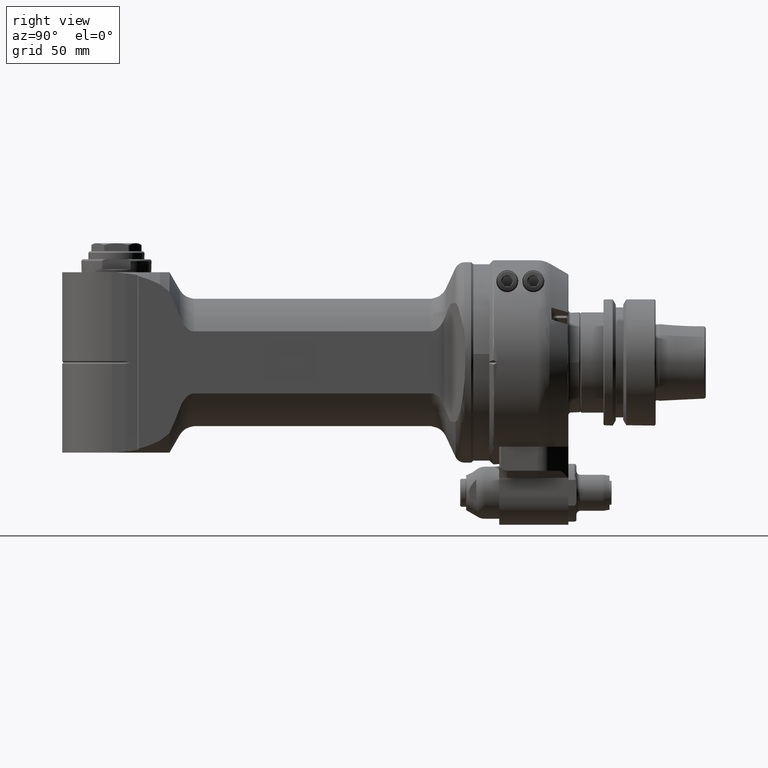
[diagram: clean part render]
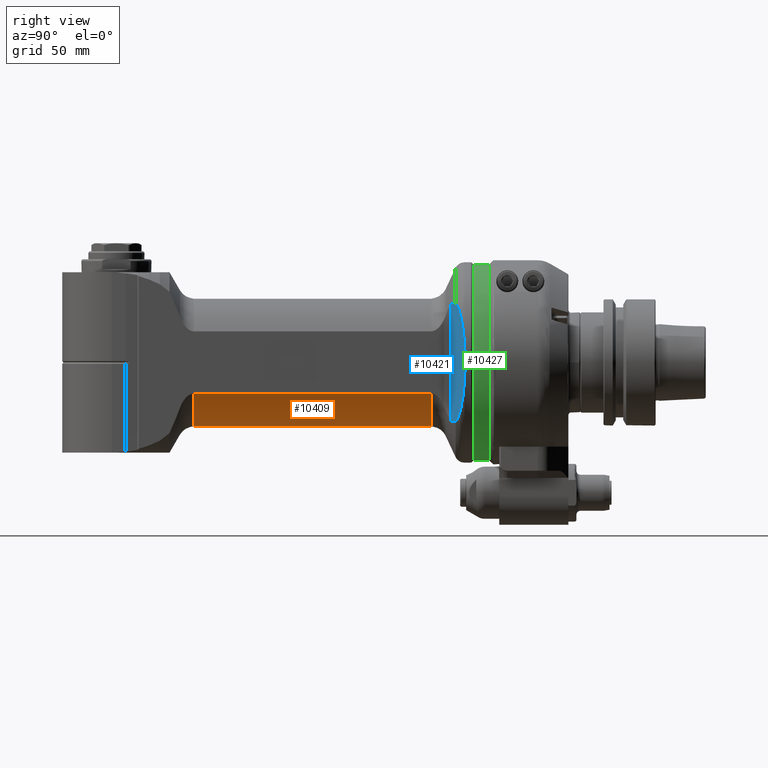
[diagram: same view with three faces highlighted in distinct colors, each labeled with its STEP entity id]
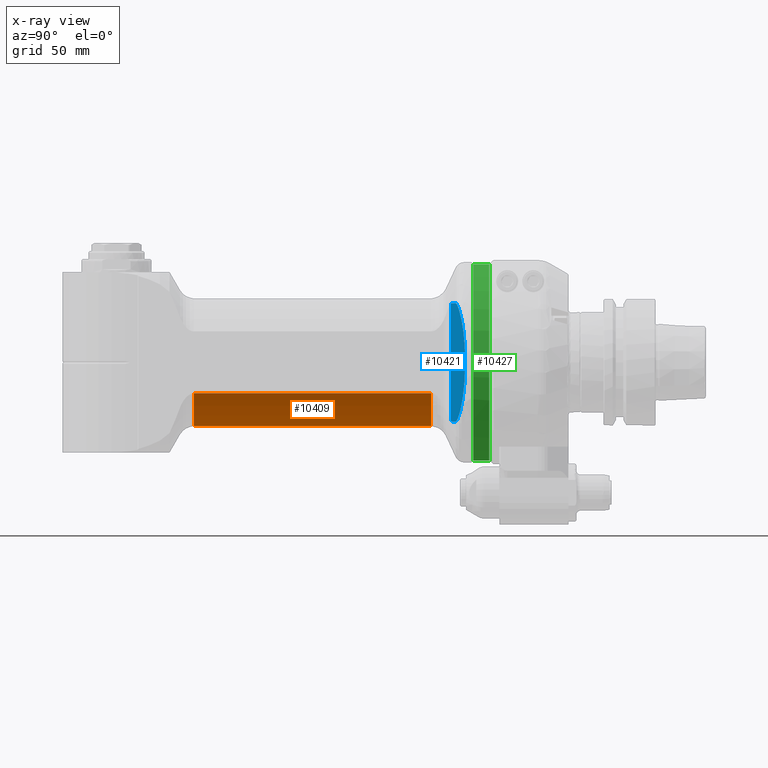
[diagram: x-ray of the same camera — body ghosted, the three highlighted faces saturated]
A machine part, right view with three faces highlighted in distinct colors.
The next image is the same camera in x-ray (body ghosted, the three faces saturated) — at least one of them is partly hidden behind the body in this view.
Their STEP definitions:

[orange] entity #10409 — the highlighted cylindrical surface (partial cylindrical patch) has radius 32 mm, axis along (-0, 1, 0).
#907=LINE('',#20424,#1550);
#925=LINE('',#20769,#1568);
#1550=VECTOR('',#14275,118.3910979735);
#1568=VECTOR('',#14369,118.3910979735);
#1819=CYLINDRICAL_SURFACE('',#11603,32.);
#2656=FACE_OUTER_BOUND('',#3321,.T.);
#3321=EDGE_LOOP('',(#9185,#9186,#9187,#9188));
#4022=CIRCLE('',#11601,32.);
#4024=CIRCLE('',#11604,32.);
#4948=VERTEX_POINT('',#20408);
#4949=VERTEX_POINT('',#20423);
#5005=VERTEX_POINT('',#20755);
#5006=VERTEX_POINT('',#20768);
#6364=EDGE_CURVE('',#4949,#4948,#907,.T.);
#6438=EDGE_CURVE('',#5006,#5005,#925,.T.);
#6465=EDGE_CURVE('',#4949,#5005,#4022,.T.);
#6467=EDGE_CURVE('',#5006,#4948,#4024,.T.);
#9185=ORIENTED_EDGE('',*,*,#6465,.F.);
#9186=ORIENTED_EDGE('',*,*,#6364,.T.);
#9187=ORIENTED_EDGE('',*,*,#6467,.F.);
#9188=ORIENTED_EDGE('',*,*,#6438,.T.);
#10409=ADVANCED_FACE('',(#2656),#1819,.T.);
#11601=AXIS2_PLACEMENT_3D('',#20900,#14392,#14393);
#11603=AXIS2_PLACEMENT_3D('',#20902,#14396,#14397);
#11604=AXIS2_PLACEMENT_3D('',#20903,#14398,#14399);
#14275=DIRECTION('',(1.,0.,0.));
#14369=DIRECTION('',(-1.,0.,0.));
#14392=DIRECTION('center_axis',(-1.,0.,0.));
#14393=DIRECTION('ref_axis',(0.,0.484122918275906,0.875000000000012));
#14396=DIRECTION('center_axis',(-1.,0.,0.));
#14397=DIRECTION('ref_axis',(0.,1.,1.22464679914735E-16));
#14398=DIRECTION('center_axis',(1.,0.,0.));
#14399=DIRECTION('ref_axis',(0.,1.,0.));
#20408=CARTESIAN_POINT('',(151.3811978465,15.49193338483,28.));
#20423=CARTESIAN_POINT('',(32.99009987301,15.49193338483,28.));
#20424=CARTESIAN_POINT('',(32.99009987301,15.49193338483,28.));
#20755=CARTESIAN_POINT('',(32.99009987301,15.49193338483,-28.));
#20768=CARTESIAN_POINT('',(151.3811978465,15.49193338483,-28.));
#20769=CARTESIAN_POINT('',(151.3811978465,15.49193338483,-28.));
#20900=CARTESIAN_POINT('Origin',(32.99009987301,0.,0.));
#20902=CARTESIAN_POINT('Origin',(41.64644709714,0.,0.));
#20903=CARTESIAN_POINT('Origin',(151.3811978465,0.,0.));

[blue] entity #10421 — the highlighted planar face has unit normal (-0.342, 0.9397, 0).
#52=ELLIPSE('',#11627,50.3672702558906,29.5863002294594);
#53=ELLIPSE('',#11629,53.2088886237962,50.);
#54=ELLIPSE('',#11630,50.3672702558906,29.5863002294594);
#279=B_SPLINE_CURVE_WITH_KNOTS('',3,(#20931,#20932,#20933,#20934,#20935,
#20936,#20937,#20938,#20939,#20940,#20941,#20942,#20943,#20944,#20945,#20946,
#20947,#20948),.UNSPECIFIED.,.F.,.F.,(4,2,2,2,2,2,2,2,4),(7.0903701651096,
7.87701940297547,8.1777676130302,8.47851582308493,8.80354910515075,9.12858238721657,
9.39474930405345,9.46225514204568,9.47110878449787),.UNSPECIFIED.);
#280=B_SPLINE_CURVE_WITH_KNOTS('',3,(#20952,#20953,#20954,#20955,#20956,
#20957,#20958,#20959,#20960,#20961,#20962,#20963,#20964,#20965,#20966,#20967,
#20968,#20969),.UNSPECIFIED.,.F.,.F.,(4,2,2,2,2,2,2,2,4),(2.93536062757929,
2.94421427000487,3.0117201079971,3.27788702483398,3.6029203068998,3.92795358896562,
4.22870179902035,4.52945000907508,5.31609924694607),.UNSPECIFIED.);
#911=LINE('',#20474,#1554);
#1554=VECTOR('',#14287,58.64425386089);
#2158=PLANE('',#11628);
#2668=FACE_OUTER_BOUND('',#3333,.T.);
#3333=EDGE_LOOP('',(#9237,#9238,#9239,#9240,#9241,#9242));
#4956=VERTEX_POINT('',#20456);
#4957=VERTEX_POINT('',#20473);
#5031=VERTEX_POINT('',#20926);
#5032=VERTEX_POINT('',#20930);
#5033=VERTEX_POINT('',#20949);
#5034=VERTEX_POINT('',#20951);
#6374=EDGE_CURVE('',#4956,#4957,#911,.T.);
#6479=EDGE_CURVE('',#4956,#5031,#52,.T.);
#6480=EDGE_CURVE('',#5032,#5031,#279,.T.);
#6481=EDGE_CURVE('',#5032,#5033,#53,.T.);
#6482=EDGE_CURVE('',#5034,#5033,#280,.T.);
#6483=EDGE_CURVE('',#5034,#4957,#54,.T.);
#9237=ORIENTED_EDGE('',*,*,#6479,.T.);
#9238=ORIENTED_EDGE('',*,*,#6480,.F.);
#9239=ORIENTED_EDGE('',*,*,#6481,.T.);
#9240=ORIENTED_EDGE('',*,*,#6482,.F.);
#9241=ORIENTED_EDGE('',*,*,#6483,.T.);
#9242=ORIENTED_EDGE('',*,*,#6374,.F.);
#10421=ADVANCED_FACE('',(#2668),#2158,.F.);
#11627=AXIS2_PLACEMENT_3D('',#20928,#14444,#14445);
#11628=AXIS2_PLACEMENT_3D('',#20929,#14446,#14447);
#11629=AXIS2_PLACEMENT_3D('',#20950,#14448,#14449);
#11630=AXIS2_PLACEMENT_3D('',#20970,#14450,#14451);
#14287=DIRECTION('',(5.839985609652E-14,-1.,-1.60660185029E-13));
#14444=DIRECTION('center_axis',(0.939692620785897,0.,0.342020143325699));
#14445=DIRECTION('ref_axis',(-0.342020143325699,1.39349996950756E-15,0.939692620785897));
#14446=DIRECTION('center_axis',(-0.939692620785897,0.,-0.342020143325699));
#14447=DIRECTION('ref_axis',(-0.342020143325699,0.,0.939692620785897));
#14448=DIRECTION('center_axis',(0.939692620785897,0.,0.342020143325699));
#14449=DIRECTION('ref_axis',(0.342020143325699,0.,-0.939692620785897));
#14450=DIRECTION('center_axis',(0.939692620785897,0.,0.342020143325699));
#14451=DIRECTION('ref_axis',(-0.342020143325699,1.39349996950756E-15,0.939692620785897));
#20456=CARTESIAN_POINT('',(23.04205971778,29.32212693045,30.6319194267));
#20473=CARTESIAN_POINT('',(23.04205971778,-29.32212693045,30.6319194267));
#20474=CARTESIAN_POINT('',(23.04205971778,29.32212693045,30.63191942671));
#20926=CARTESIAN_POINT('',(20.8461875004803,29.5857914026295,36.6650287600173));
#20928=CARTESIAN_POINT('Origin',(20.7451569433892,1.77635683940025E-14,
36.9426079340045));
#20929=CARTESIAN_POINT('Origin',(24.00000004808,0.,28.));
#20930=CARTESIAN_POINT('',(16.31464863572,9.363995485013,49.11532946603));
#20931=CARTESIAN_POINT('Ctrl Pts',(16.3146486357203,9.36399548501295,49.1153294660298));
#20932=CARTESIAN_POINT('Ctrl Pts',(16.5089546643471,12.1641130973672,48.5814780399139));
#20933=CARTESIAN_POINT('Ctrl Pts',(16.7970626489297,14.8926841819697,47.7899078579088));
#20934=CARTESIAN_POINT('Ctrl Pts',(17.2779022721392,18.2335890551422,46.4688118507617));
#20935=CARTESIAN_POINT('Ctrl Pts',(17.4371534747882,19.2325943001654,46.0312727674626));
#20936=CARTESIAN_POINT('Ctrl Pts',(17.7890019232365,21.1784209335023,45.0645771002807));
#20937=CARTESIAN_POINT('Ctrl Pts',(17.9817805222086,22.1249619431992,44.5349222526509));
#20938=CARTESIAN_POINT('Ctrl Pts',(18.3765030725583,23.8625497430824,43.4504309586156));
#20939=CARTESIAN_POINT('Ctrl Pts',(18.6191470504405,24.8187856959593,42.7837721084178));
#20940=CARTESIAN_POINT('Ctrl Pts',(19.1522606848867,26.6017151146837,41.3190544357736));
#20941=CARTESIAN_POINT('Ctrl Pts',(19.4425932033076,27.4287590831444,40.5213723972789));
#20942=CARTESIAN_POINT('Ctrl Pts',(19.9758958164078,28.6338312433967,39.05613551005));
#20943=CARTESIAN_POINT('Ctrl Pts',(20.2825600158396,29.2079207962777,38.2135825467563));
#20944=CARTESIAN_POINT('Ctrl Pts',(20.6474740822835,29.5221310747005,37.2109893891602));
#20945=CARTESIAN_POINT('Ctrl Pts',(20.738047373882,29.5748920999617,36.9621413156877));
#20946=CARTESIAN_POINT('Ctrl Pts',(20.825030055835,29.5852601580148,36.7231583611383));
#20947=CARTESIAN_POINT('Ctrl Pts',(20.8354969146307,29.5858990840588,36.6944009029444));
#20948=CARTESIAN_POINT('Ctrl Pts',(20.8461875003858,29.5857914029915,36.6650287599816));
#20949=CARTESIAN_POINT('',(16.31464863572,-9.363995484958,49.11532946604));
#20950=CARTESIAN_POINT('Origin',(34.1911666075347,0.,0.));
#20951=CARTESIAN_POINT('',(20.8461875004163,-29.5857914025045,36.6650287602944));
#20952=CARTESIAN_POINT('Ctrl Pts',(20.8461875002894,-29.5857914029924,36.6650287602464));
#20953=CARTESIAN_POINT('Ctrl Pts',(20.8354969145678,-29.585899084055,36.6944009031172));
#20954=CARTESIAN_POINT('Ctrl Pts',(20.8250300558047,-29.5852601580111,36.7231583612216));
#20955=CARTESIAN_POINT('Ctrl Pts',(20.738047373882,-29.5748920999617,36.9621413156877));
#20956=CARTESIAN_POINT('Ctrl Pts',(20.6474740822835,-29.5221310747005,37.2109893891602));
#20957=CARTESIAN_POINT('Ctrl Pts',(20.2825600158396,-29.2079207962777,38.2135825467563));
#20958=CARTESIAN_POINT('Ctrl Pts',(19.9758958164078,-28.6338312433967,39.05613551005));
#20959=CARTESIAN_POINT('Ctrl Pts',(19.4425932033076,-27.4287590831444,40.5213723972789));
#20960=CARTESIAN_POINT('Ctrl Pts',(19.1522606848867,-26.6017151146837,41.3190544357736));
#20961=CARTESIAN_POINT('Ctrl Pts',(18.6191470504405,-24.8187856959593,42.7837721084178));
#20962=CARTESIAN_POINT('Ctrl Pts',(18.3765030725583,-23.8625497430824,43.4504309586156));
#20963=CARTESIAN_POINT('Ctrl Pts',(17.9817805222086,-22.1249619431991,44.5349222526509));
#20964=CARTESIAN_POINT('Ctrl Pts',(17.7890019232365,-21.1784209335023,45.0645771002807));
#20965=CARTESIAN_POINT('Ctrl Pts',(17.4371534747882,-19.2325943001654,46.0312727674626));
#20966=CARTESIAN_POINT('Ctrl Pts',(17.2779022721392,-18.2335890551422,46.4688118507617));
#20967=CARTESIAN_POINT('Ctrl Pts',(16.7970626489274,-14.892684181954,47.789907857915));
#20968=CARTESIAN_POINT('Ctrl Pts',(16.5089546643434,-12.1641130973317,48.5814780399241));
#20969=CARTESIAN_POINT('Ctrl Pts',(16.3146486357165,-9.36399548495828,49.1153294660402));
#20970=CARTESIAN_POINT('Origin',(20.7451569433892,1.77635683940025E-14,
36.9426079340045));

[green] entity #10427 — the highlighted cylindrical surface (bore or boss wall) has radius 49 mm, axis along (0, -1, -0).
#936=LINE('',#21034,#1579);
#1579=VECTOR('',#14486,49.);
#1821=CYLINDRICAL_SURFACE('',#11646,49.);
#2674=FACE_OUTER_BOUND('',#3339,.T.);
#3339=EDGE_LOOP('',(#9274,#9275,#9276,#9277,#9278));
#4041=CIRCLE('',#11644,49.);
#4042=CIRCLE('',#11645,49.);
#4043=CIRCLE('',#11647,49.);
#5041=VERTEX_POINT('',#21027);
#5042=VERTEX_POINT('',#21029);
#5043=VERTEX_POINT('',#21033);
#6496=EDGE_CURVE('',#5041,#5042,#4041,.T.);
#6497=EDGE_CURVE('',#5042,#5041,#4042,.T.);
#6498=EDGE_CURVE('',#5042,#5043,#936,.T.);
#6499=EDGE_CURVE('',#5043,#5043,#4043,.T.);
#9274=ORIENTED_EDGE('',*,*,#6497,.F.);
#9275=ORIENTED_EDGE('',*,*,#6498,.T.);
#9276=ORIENTED_EDGE('',*,*,#6499,.F.);
#9277=ORIENTED_EDGE('',*,*,#6498,.F.);
#9278=ORIENTED_EDGE('',*,*,#6496,.F.);
#10427=ADVANCED_FACE('',(#2674),#1821,.T.);
#11644=AXIS2_PLACEMENT_3D('',#21030,#14480,#14481);
#11645=AXIS2_PLACEMENT_3D('',#21031,#14482,#14483);
#11646=AXIS2_PLACEMENT_3D('',#21032,#14484,#14485);
#11647=AXIS2_PLACEMENT_3D('',#21035,#14487,#14488);
#14480=DIRECTION('center_axis',(1.,0.,0.));
#14481=DIRECTION('ref_axis',(0.,-1.,0.));
#14482=DIRECTION('center_axis',(1.,0.,0.));
#14483=DIRECTION('ref_axis',(0.,-1.,0.));
#14484=DIRECTION('center_axis',(1.,0.,0.));
#14485=DIRECTION('ref_axis',(0.,0.0871557427476639,-0.996194698091745));
#14486=DIRECTION('',(-1.,0.,0.));
#14487=DIRECTION('center_axis',(-1.,0.,0.));
#14488=DIRECTION('ref_axis',(0.,-0.0871557427476639,0.996194698091745));
#21027=CARTESIAN_POINT('',(12.,49.,6.00076931582203E-15));
#21029=CARTESIAN_POINT('',(12.,-4.270631394635,48.8135402065));
#21030=CARTESIAN_POINT('Origin',(12.,0.,0.));
#21031=CARTESIAN_POINT('Origin',(12.,0.,0.));
#21032=CARTESIAN_POINT('Origin',(8.1,0.,0.));
#21033=CARTESIAN_POINT('',(4.000000000002,-4.270631394635,48.8135402065));
#21034=CARTESIAN_POINT('',(8.1,-4.27063139463554,48.8135402064955));
#21035=CARTESIAN_POINT('Origin',(4.000000000002,0.,0.));